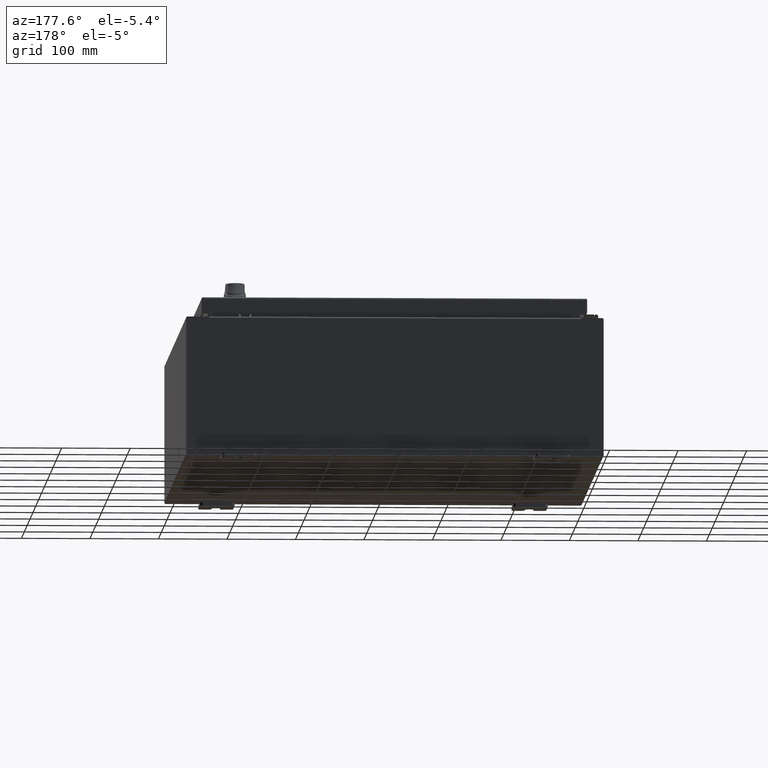
[diagram: clean part render]
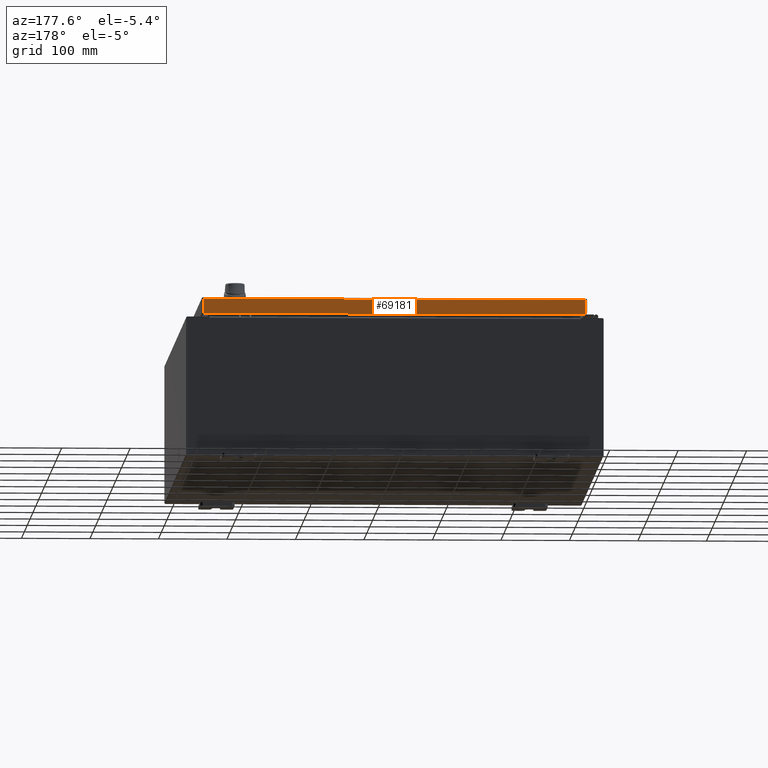
[diagram: same view with one face highlighted and labeled with its STEP entity id]
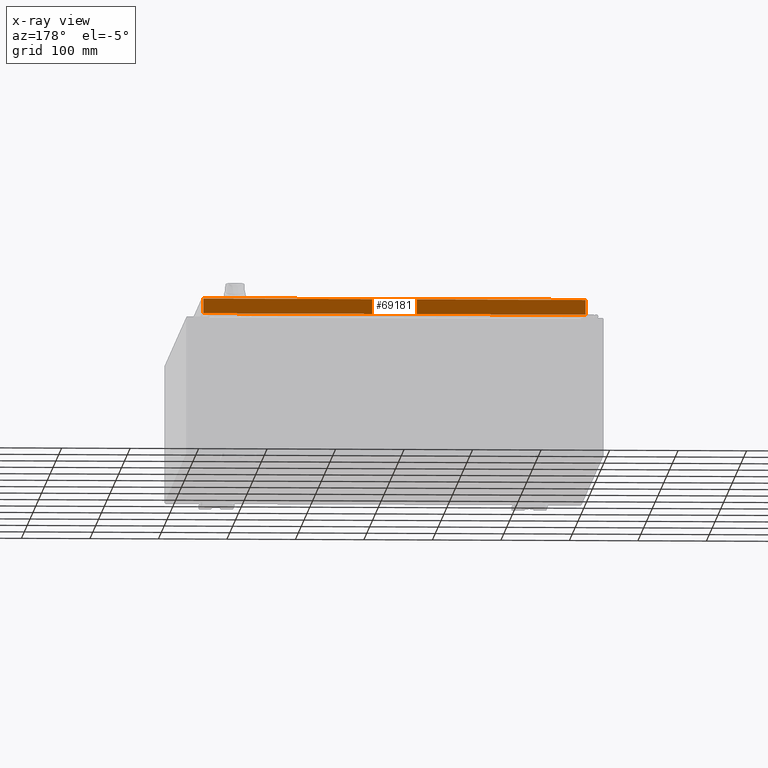
[diagram: x-ray of the same camera — body ghosted, the highlighted face saturated]
A machine part, auxiliary view. The second image highlights one B-rep face of the part: STEP entity #69181.
The next image is the same camera in x-ray: the body ghosted, the highlighted face saturated — about 0% of this face is hidden behind the body in this view.
In plain terms, the highlighted planar face has unit normal (0, -1, -0).
Its self-contained STEP definition (entity closure, byte-faithful):
#6637 = VERTEX_POINT ( 'NONE', #53495 ) ;
#7161 = DIRECTION ( 'NONE',  ( 3.122488847327582500E-031, -1.000000000000000000, -2.532419924601858200E-015 ) ) ;
#15102 = LINE ( 'NONE', #49448, #17904 ) ;
#15778 = CARTESIAN_POINT ( 'NONE',  ( -10.98915786437626700, 14.09399999999999900, -0.08770000000000008300 ) ) ;
#17904 = VECTOR ( 'NONE', #94635, 39.37007874015748100 ) ;
#18294 = ORIENTED_EDGE ( 'NONE', *, *, #47216, .F. ) ;
#21718 = CARTESIAN_POINT ( 'NONE',  ( 10.98915786437626700, 14.09399999999999900, -0.08770000000000008300 ) ) ;
#22459 = ORIENTED_EDGE ( 'NONE', *, *, #90478, .F. ) ;
#26403 = VECTOR ( 'NONE', #100528, 39.37007874015748100 ) ;
#28685 = EDGE_CURVE ( 'NONE', #100107, #63599, #94887, .T. ) ;
#28817 = DIRECTION ( 'NONE',  ( 0.0000000000000000000, 2.532419924601858200E-015, -1.000000000000000000 ) ) ;
#37172 = CARTESIAN_POINT ( 'NONE',  ( -11.07799999999999900, 14.09400000000000100, -0.9377000000000025300 ) ) ;
#40578 = EDGE_LOOP ( 'NONE', ( #22459, #70316, #18294, #110343 ) ) ;
#45544 = DIRECTION ( 'NONE',  ( -1.000000000000000000, -3.122488847327583000E-031, -7.817847125977018100E-046 ) ) ;
#46665 = VECTOR ( 'NONE', #28817, 39.37007874015748100 ) ;
#47216 = EDGE_CURVE ( 'NONE', #6637, #63599, #93012, .T. ) ;
#47329 = EDGE_CURVE ( 'NONE', #94463, #6637, #15102, .T. ) ;
#49448 = CARTESIAN_POINT ( 'NONE',  ( -10.98915786437626900, 14.09399999999999900, -0.07469999999999980800 ) ) ;
#51480 = FACE_OUTER_BOUND ( 'NONE', #40578, .T. ) ;
#53495 = CARTESIAN_POINT ( 'NONE',  ( -10.98915786437626900, 14.09400000000000100, -0.9377000000000025300 ) ) ;
#54631 = CARTESIAN_POINT ( 'NONE',  ( -11.07799999999999900, 14.09399999999999900, -0.08770000000000008300 ) ) ;
#61359 = PLANE ( 'NONE',  #105956 ) ;
#63599 = VERTEX_POINT ( 'NONE', #98992 ) ;
#64895 = CARTESIAN_POINT ( 'NONE',  ( 10.98915786437626900, 14.09399999999999900, 3.595274007335016100E-014 ) ) ;
#69181 = ADVANCED_FACE ( 'NONE', ( #51480 ), #61359, .F. ) ;
#70316 = ORIENTED_EDGE ( 'NONE', *, *, #28685, .T. ) ;
#70494 = DIRECTION ( 'NONE',  ( 0.0000000000000000000, 2.532419924601858200E-015, -1.000000000000000000 ) ) ;
#88284 = CARTESIAN_POINT ( 'NONE',  ( -4.400835781423494800E-030, 14.09399999999999900, 3.595274007335016100E-014 ) ) ;
#88981 = LINE ( 'NONE', #54631, #110215 ) ;
#90478 = EDGE_CURVE ( 'NONE', #100107, #94463, #88981, .T. ) ;
#93012 = LINE ( 'NONE', #37172, #26403 ) ;
#94463 = VERTEX_POINT ( 'NONE', #15778 ) ;
#94635 = DIRECTION ( 'NONE',  ( -0.0000000000000000000, 2.532419924601858200E-015, -1.000000000000000000 ) ) ;
#94887 = LINE ( 'NONE', #64895, #46665 ) ;
#98992 = CARTESIAN_POINT ( 'NONE',  ( 10.98915786437626700, 14.09400000000000100, -0.9376999999999997600 ) ) ;
#100107 = VERTEX_POINT ( 'NONE', #21718 ) ;
#100528 = DIRECTION ( 'NONE',  ( 1.000000000000000000, -4.379057701015054300E-047, 1.233005954894504400E-016 ) ) ;
#105956 = AXIS2_PLACEMENT_3D ( 'NONE', #88284, #7161, #70494 ) ;
#110215 = VECTOR ( 'NONE', #45544, 39.37007874015748100 ) ;
#110343 = ORIENTED_EDGE ( 'NONE', *, *, #47329, .F. ) ;